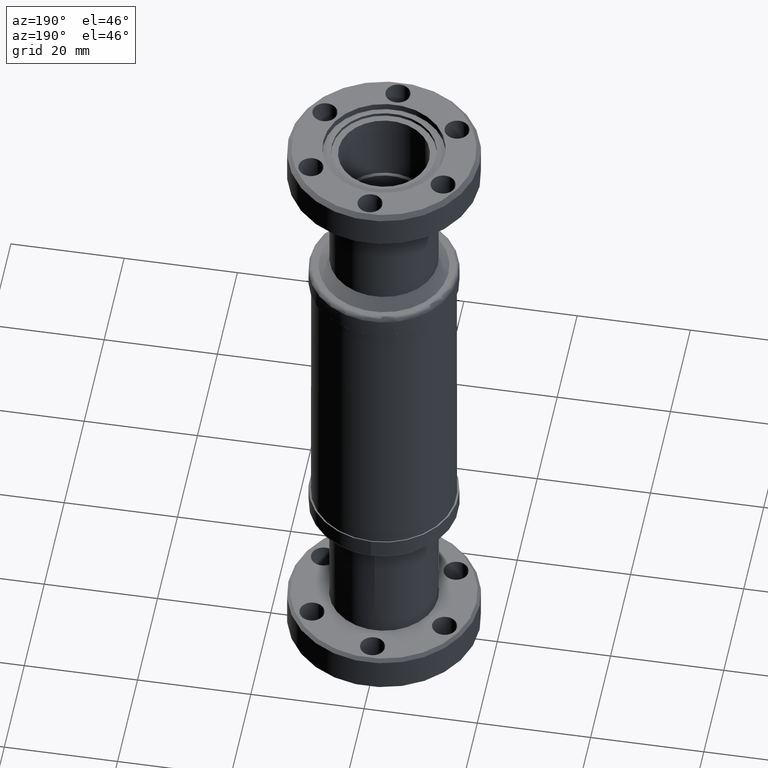
[diagram: clean part render]
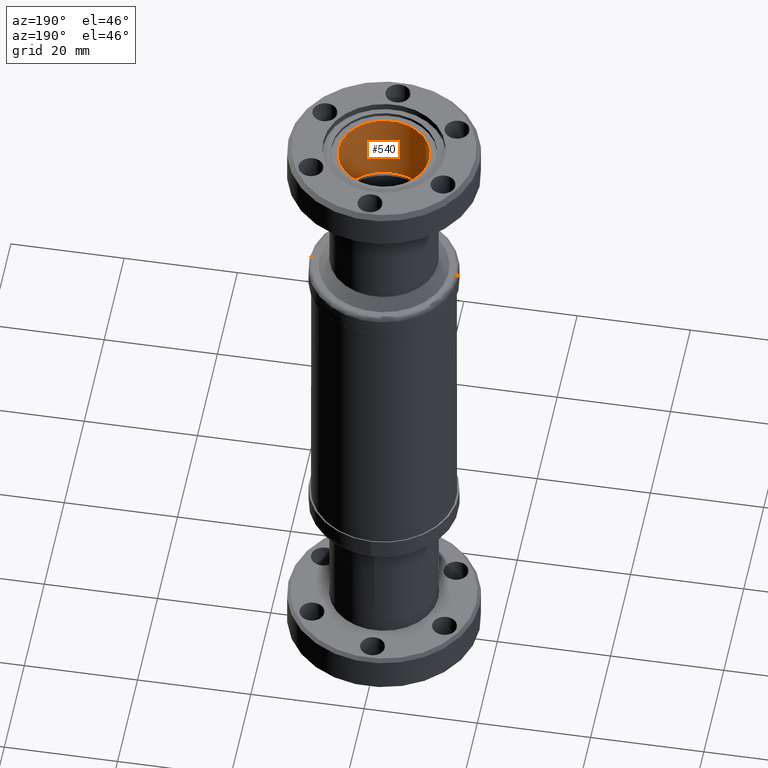
[diagram: same view with one face highlighted and labeled with its STEP entity id]
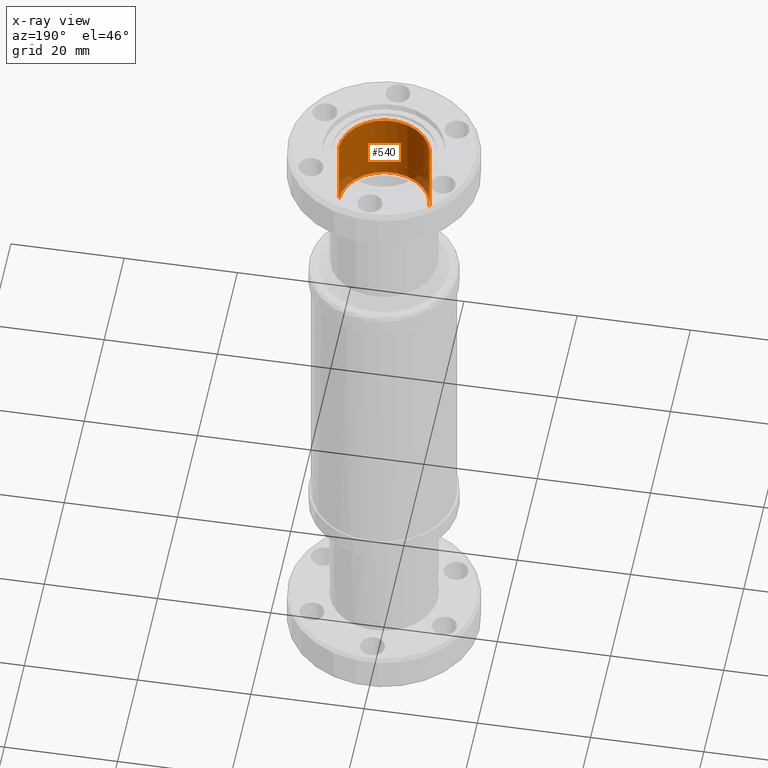
[diagram: x-ray of the same camera — body ghosted, the highlighted face saturated]
A machine part, auxiliary view. The second image highlights one B-rep face of the part: STEP entity #540.
The next image is the same camera in x-ray: the body ghosted, the highlighted face saturated — about 6% of this face is hidden behind the body in this view.
In plain terms, the highlighted cylindrical surface (partial cylindrical patch) has radius 8.001 mm, axis along (0, -0, -1).
Its self-contained STEP definition (entity closure, byte-faithful):
#59 = CYLINDRICAL_SURFACE ( 'NONE', #4351, 0.3150000000000000600 ) ;
#179 = FACE_OUTER_BOUND ( 'NONE', #2970, .T. ) ;
#540 = ADVANCED_FACE ( 'NONE', ( #179 ), #59, .F. ) ;
#763 = AXIS2_PLACEMENT_3D ( 'NONE', #4454, #4453, #4452 ) ;
#764 = AXIS2_PLACEMENT_3D ( 'NONE', #4461, #4460, #4459 ) ;
#937 = CARTESIAN_POINT ( 'NONE',  ( 0.3149999999999991700, 1.195895957208203300E-016, 3.424970110498948300 ) ) ;
#1108 = CARTESIAN_POINT ( 'NONE',  ( -0.3150000000000008900, 4.408644135635580400E-017, 2.916970110498948300 ) ) ;
#1122 = CARTESIAN_POINT ( 'NONE',  ( -0.3150000000000009500, 1.179400017390015600E-016, 3.424970110498948300 ) ) ;
#1181 = CARTESIAN_POINT ( 'NONE',  ( 0.3149999999999992300, 1.195895957208203300E-016, 2.916970110498948300 ) ) ;
#1745 = EDGE_CURVE ( 'NONE', #3251, #3350, #3626, .T. ) ;
#1746 = EDGE_CURVE ( 'NONE', #3350, #3923, #3620, .T. ) ;
#1747 = EDGE_CURVE ( 'NONE', #3258, #3923, #3617, .T. ) ;
#1748 = EDGE_CURVE ( 'NONE', #3251, #3258, #3618, .T. ) ;
#1924 = CARTESIAN_POINT ( 'NONE',  ( -9.294678182527858000E-016, 1.254998150065164600E-016, 3.476970110498948300 ) ) ;
#1927 = DIRECTION ( 'NONE',  ( 1.625522968444812200E-016, -1.453810243752868500E-016, -1.000000000000000000 ) ) ;
#1930 = DIRECTION ( 'NONE',  ( -1.000000000000000000, 0.0000000000000000000, 0.0000000000000000000 ) ) ;
#2606 = ORIENTED_EDGE ( 'NONE', *, *, #1746, .T. ) ;
#2607 = ORIENTED_EDGE ( 'NONE', *, *, #1747, .F. ) ;
#2610 = ORIENTED_EDGE ( 'NONE', *, *, #1748, .F. ) ;
#2618 = ORIENTED_EDGE ( 'NONE', *, *, #1745, .T. ) ;
#2970 = EDGE_LOOP ( 'NONE', ( #2618, #2606, #2607, #2610 ) ) ;
#3251 = VERTEX_POINT ( 'NONE', #1122 ) ;
#3258 = VERTEX_POINT ( 'NONE', #1108 ) ;
#3350 = VERTEX_POINT ( 'NONE', #937 ) ;
#3613 = VECTOR ( 'NONE', #4465, 39.37007874015748100 ) ;
#3616 = VECTOR ( 'NONE', #4466, 39.37007874015748100 ) ;
#3617 = CIRCLE ( 'NONE', #763, 0.3150000000000000600 ) ;
#3618 = LINE ( 'NONE', #4455, #3613 ) ;
#3620 = LINE ( 'NONE', #4462, #3616 ) ;
#3626 = CIRCLE ( 'NONE', #764, 0.3150000000000000600 ) ;
#3923 = VERTEX_POINT ( 'NONE', #1181 ) ;
#4351 = AXIS2_PLACEMENT_3D ( 'NONE', #1924, #1927, #1930 ) ;
#4452 = DIRECTION ( 'NONE',  ( -1.000000000000000000, 0.0000000000000000000, 0.0000000000000000000 ) ) ;
#4453 = DIRECTION ( 'NONE',  ( -1.625522968444812200E-016, 1.453810243752868500E-016, 1.000000000000000000 ) ) ;
#4454 = CARTESIAN_POINT ( 'NONE',  ( -8.384385320198763200E-016, 4.408644135635580400E-017, 2.916970110498948300 ) ) ;
#4455 = CARTESIAN_POINT ( 'NONE',  ( -0.3150000000000010000, 1.254998150065164600E-016, 3.476970110498948300 ) ) ;
#4459 = DIRECTION ( 'NONE',  ( -1.000000000000000000, 0.0000000000000000000, 0.0000000000000000000 ) ) ;
#4460 = DIRECTION ( 'NONE',  ( -1.625522968444812200E-016, 1.453810243752868500E-016, 1.000000000000000000 ) ) ;
#4461 = CARTESIAN_POINT ( 'NONE',  ( -9.210150988168727400E-016, 1.179400017390015600E-016, 3.424970110498948300 ) ) ;
#4462 = CARTESIAN_POINT ( 'NONE',  ( 0.3149999999999991100, 1.640761891796580900E-016, 3.476970110498948300 ) ) ;
#4465 = DIRECTION ( 'NONE',  ( 1.625522968444812200E-016, -1.453810243752868500E-016, -1.000000000000000000 ) ) ;
#4466 = DIRECTION ( 'NONE',  ( 1.625522968444812200E-016, -1.453810243752868500E-016, -1.000000000000000000 ) ) ;